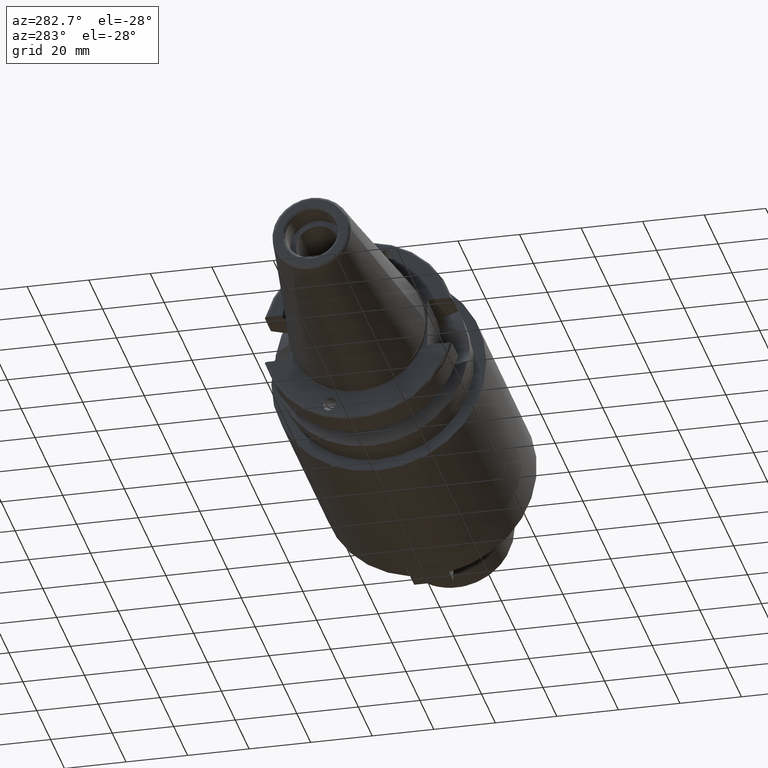
[diagram: clean part render]
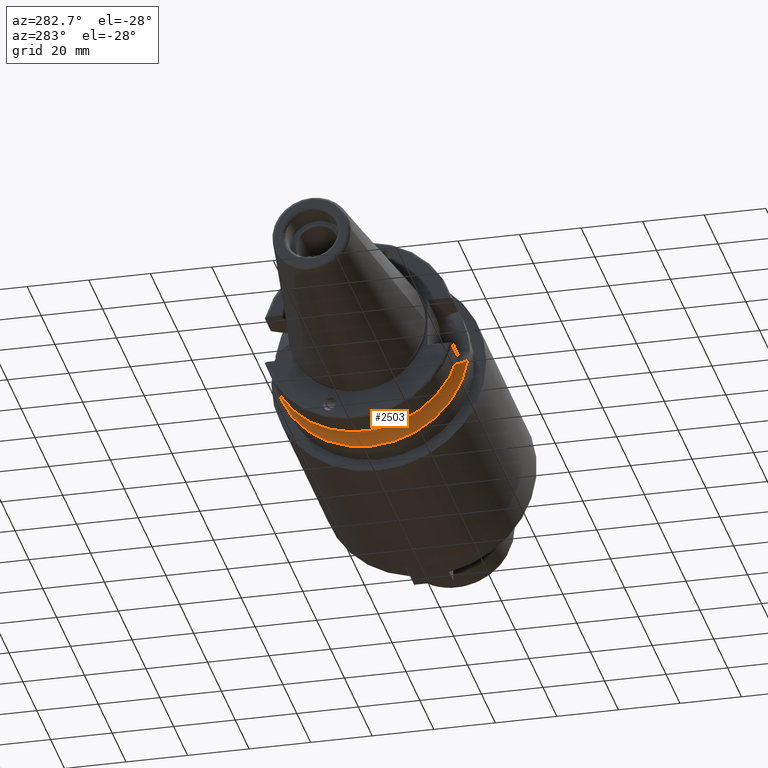
[diagram: same view with one face highlighted and labeled with its STEP entity id]
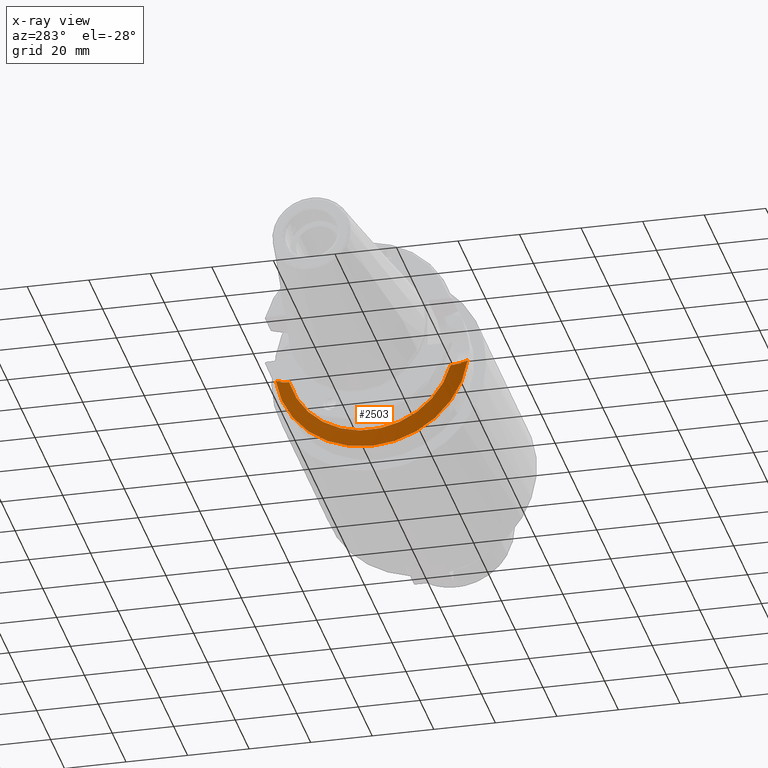
[diagram: x-ray of the same camera — body ghosted, the highlighted face saturated]
A machine part, auxiliary view. The second image highlights one B-rep face of the part: STEP entity #2503.
The next image is the same camera in x-ray: the body ghosted, the highlighted face saturated — about 0% of this face is hidden behind the body in this view.
In plain terms, the highlighted conical surface has half-angle 60.125 deg.
Its self-contained STEP definition (entity closure, byte-faithful):
#523=B_SPLINE_CURVE_WITH_KNOTS('',3,(#4211,#4212,#4213,#4214,#4215,#4216),
 .UNSPECIFIED.,.F.,.F.,(4,2,4),(3.12975744792547,3.62699288756974,3.70848737461386),
 .UNSPECIFIED.);
#531=B_SPLINE_CURVE_WITH_KNOTS('',3,(#4327,#4328,#4329,#4330,#4331,#4332),
 .UNSPECIFIED.,.F.,.F.,(4,2,4),(1.46421027899559,1.54570476603972,2.04294020568399),
 .UNSPECIFIED.);
#644=CIRCLE('',#2836,31.5);
#647=CIRCLE('',#2840,27.0940716549138);
#743=CONICAL_SURFACE('',#2839,29.2970358274569,1.0493792127616);
#800=FACE_OUTER_BOUND('',#936,.T.);
#936=EDGE_LOOP('',(#2034,#2035,#2036,#2037));
#1369=VERTEX_POINT('',#4208);
#1370=VERTEX_POINT('',#4210);
#1392=VERTEX_POINT('',#4309);
#1394=VERTEX_POINT('',#4325);
#1601=EDGE_CURVE('',#1370,#1369,#523,.T.);
#1627=EDGE_CURVE('',#1370,#1392,#644,.T.);
#1631=EDGE_CURVE('',#1369,#1394,#647,.T.);
#1632=EDGE_CURVE('',#1394,#1392,#531,.T.);
#2034=ORIENTED_EDGE('',*,*,#1601,.T.);
#2035=ORIENTED_EDGE('',*,*,#1631,.T.);
#2036=ORIENTED_EDGE('',*,*,#1632,.T.);
#2037=ORIENTED_EDGE('',*,*,#1627,.F.);
#2503=ADVANCED_FACE('',(#800),#743,.T.);
#2836=AXIS2_PLACEMENT_3D('',#4310,#3323,#3324);
#2839=AXIS2_PLACEMENT_3D('',#4324,#3329,#3330);
#2840=AXIS2_PLACEMENT_3D('',#4326,#3331,#3332);
#3323=DIRECTION('center_axis',(1.,0.,0.));
#3324=DIRECTION('ref_axis',(0.,0.,-1.));
#3329=DIRECTION('center_axis',(1.,0.,0.));
#3330=DIRECTION('ref_axis',(0.,1.,0.));
#3331=DIRECTION('center_axis',(1.,0.,0.));
#3332=DIRECTION('ref_axis',(0.,0.,-1.));
#4208=CARTESIAN_POINT('',(19.1,-26.201311395455,-6.89782574439221));
#4210=CARTESIAN_POINT('',(21.6309636926618,-31.1782420264945,-4.4907932637046));
#4211=CARTESIAN_POINT('Ctrl Pts',(21.6309636926618,-31.1782420264945,-4.4907932637046));
#4212=CARTESIAN_POINT('Ctrl Pts',(20.9728756148303,-29.8797957262939,-5.46983244373115));
#4213=CARTESIAN_POINT('Ctrl Pts',(20.1784155384866,-28.3157123387484,-6.18231368976925));
#4214=CARTESIAN_POINT('Ctrl Pts',(19.3406963650697,-26.6728819297428,-6.7486710865604));
#4215=CARTESIAN_POINT('Ctrl Pts',(19.2210929544554,-26.438473693351,-6.82497151762395));
#4216=CARTESIAN_POINT('Ctrl Pts',(19.1,-26.201311395455,-6.89782574439221));
#4309=CARTESIAN_POINT('',(21.6309636926618,31.1782420264945,-4.4907932637046));
#4310=CARTESIAN_POINT('Origin',(21.6309636926618,0.,0.));
#4324=CARTESIAN_POINT('Origin',(20.3654818463309,0.,0.));
#4325=CARTESIAN_POINT('',(19.1,26.201311395455,-6.89782574439221));
#4326=CARTESIAN_POINT('Origin',(19.1,0.,0.));
#4327=CARTESIAN_POINT('Ctrl Pts',(19.1,26.201311395455,-6.89782574439221));
#4328=CARTESIAN_POINT('Ctrl Pts',(19.2210929544554,26.4384736933511,-6.82497151762395));
#4329=CARTESIAN_POINT('Ctrl Pts',(19.3406963650697,26.6728819297428,-6.74867108656039));
#4330=CARTESIAN_POINT('Ctrl Pts',(20.1784155384866,28.3157123387484,-6.18231368976925));
#4331=CARTESIAN_POINT('Ctrl Pts',(20.9728756148303,29.8797957262939,-5.46983244373115));
#4332=CARTESIAN_POINT('Ctrl Pts',(21.6309636926618,31.1782420264945,-4.4907932637046));